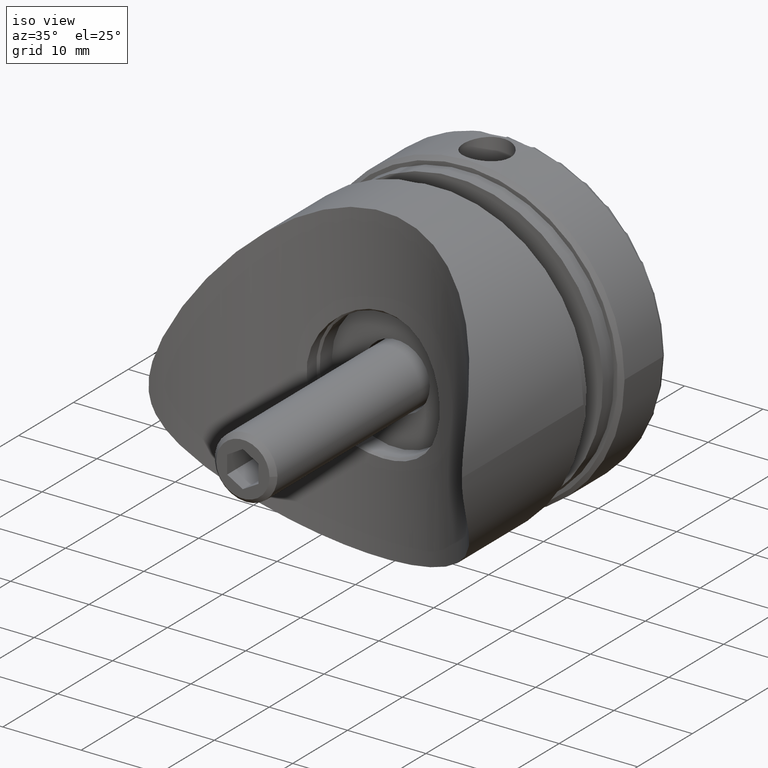
[diagram: clean part render]
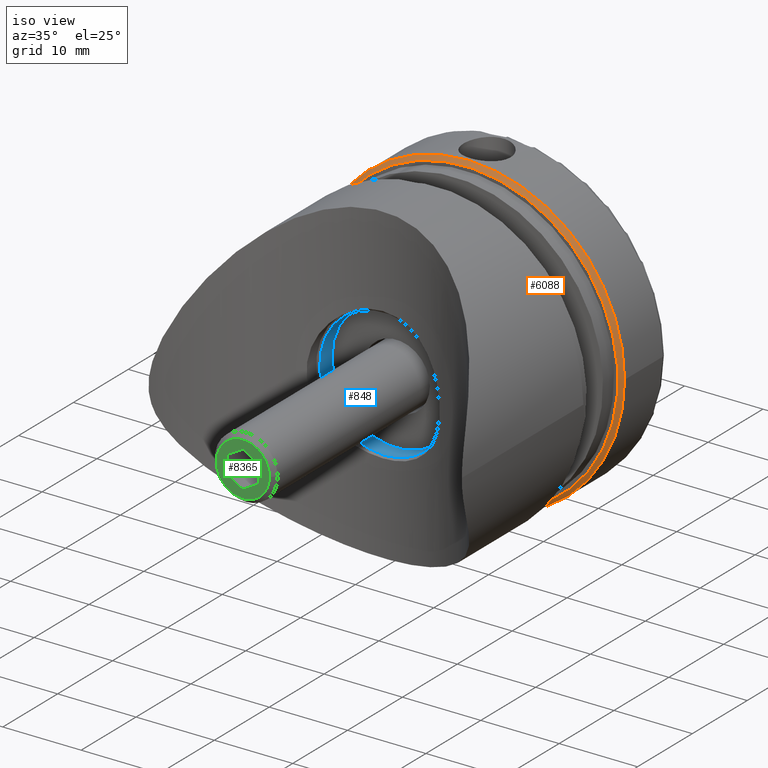
[diagram: same view with three faces highlighted in distinct colors, each labeled with its STEP entity id]
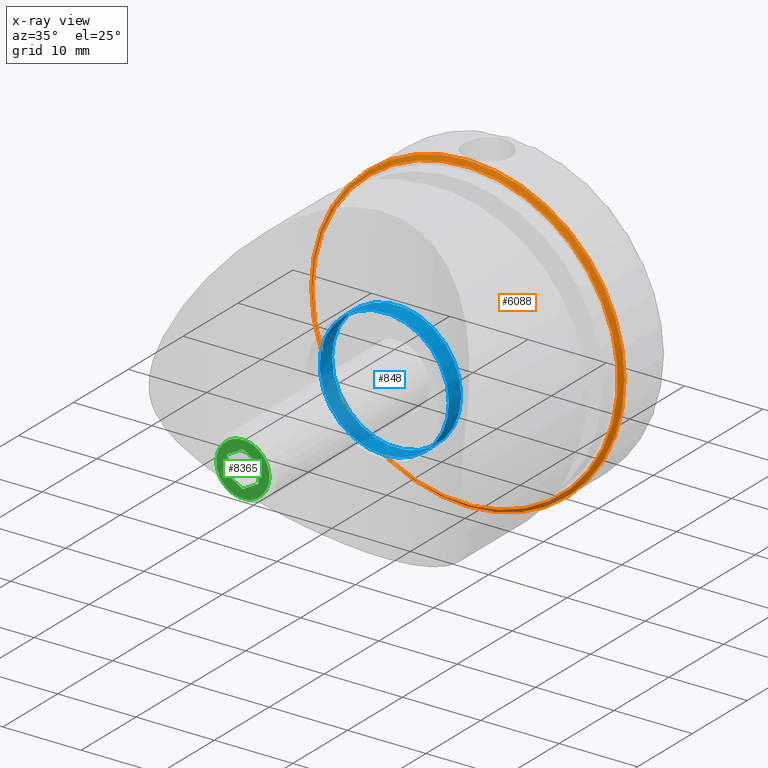
[diagram: x-ray of the same camera — body ghosted, the three highlighted faces saturated]
A machine part, iso view with three faces highlighted in distinct colors.
The next image is the same camera in x-ray (body ghosted, the three faces saturated) — at least one of them is partly hidden behind the body in this view.
Their STEP definitions:

[orange] entity #6088 — the highlighted conical surface has half-angle 45 deg.
#461 = DIRECTION ( 'NONE',  ( -1.000000000000000000, -9.486769009248167742E-16, 0.000000000000000000 ) ) ;
#2050 = VERTEX_POINT ( 'NONE', #13696 ) ;
#3410 = CARTESIAN_POINT ( 'NONE',  ( -8.953186724940663883E-30, 9.462128050782584868E-15, 0.000000000000000000 ) ) ;
#4585 = VERTEX_POINT ( 'NONE', #13529 ) ;
#5001 = EDGE_CURVE ( 'NONE', #4585, #4585, #14170, .T. ) ;
#5219 = DIRECTION ( 'NONE',  ( -9.462128050782584868E-16, 1.000000000000000000, 0.000000000000000000 ) ) ;
#5527 = AXIS2_PLACEMENT_3D ( 'NONE', #12988, #5939, #14184 ) ;
#5939 = DIRECTION ( 'NONE',  ( 9.462128050782584868E-16, -1.000000000000000000, -0.000000000000000000 ) ) ;
#6088 = ADVANCED_FACE ( 'NONE', ( #11196, #11389 ), #8096, .T. ) ;
#6242 = ORIENTED_EDGE ( 'NONE', *, *, #10031, .F. ) ;
#7002 = DIRECTION ( 'NONE',  ( -9.462128050782584868E-16, 1.000000000000000000, 0.000000000000000000 ) ) ;
#8058 = AXIS2_PLACEMENT_3D ( 'NONE', #9855, #5219, #461 ) ;
#8096 = CONICAL_SURFACE ( 'NONE', #10264, 19.50000000000000711, 0.7853981633974479459 ) ;
#8348 = ORIENTED_EDGE ( 'NONE', *, *, #5001, .F. ) ;
#9477 = EDGE_LOOP ( 'NONE', ( #6242 ) ) ;
#9855 = CARTESIAN_POINT ( 'NONE',  ( -4.731064025391258908E-16, 0.4999999999999964473, 0.000000000000000000 ) ) ;
#10031 = EDGE_CURVE ( 'NONE', #2050, #2050, #10833, .T. ) ;
#10264 = AXIS2_PLACEMENT_3D ( 'NONE', #3410, #7002, #13898 ) ;
#10833 = CIRCLE ( 'NONE', #8058, 19.99999999999999289 ) ;
#11196 = FACE_OUTER_BOUND ( 'NONE', #9477, .T. ) ;
#11389 = FACE_BOUND ( 'NONE', #13139, .T. ) ;
#12988 = CARTESIAN_POINT ( 'NONE',  ( -8.953186724940666686E-30, 9.462128050782584868E-15, 0.000000000000000000 ) ) ;
#13139 = EDGE_LOOP ( 'NONE', ( #8348 ) ) ;
#13529 = CARTESIAN_POINT ( 'NONE',  ( -19.50000000000000711, -8.989021648243461542E-15, 0.000000000000000000 ) ) ;
#13696 = CARTESIAN_POINT ( 'NONE',  ( -19.99999999999999289, 0.4999999999999774625, 0.000000000000000000 ) ) ;
#13898 = DIRECTION ( 'NONE',  ( -1.000000000000000000, -9.462128050782582896E-16, 0.000000000000000000 ) ) ;
#14170 = CIRCLE ( 'NONE', #5527, 19.50000000000000711 ) ;
#14184 = DIRECTION ( 'NONE',  ( -1.000000000000000000, -9.462128050782582896E-16, 0.000000000000000000 ) ) ;

[blue] entity #848 — the highlighted cylindrical surface (bore or boss wall) has radius 8.25 mm, axis along (-0, 1, -0).
#222 = DIRECTION ( 'NONE',  ( -1.000000000000000000, 4.336808689942018722E-16, 0.000000000000000000 ) ) ;
#710 = CARTESIAN_POINT ( 'NONE',  ( -8.249999999999998224, 0.2499999999999994726, 0.000000000000000000 ) ) ;
#848 = ADVANCED_FACE ( 'NONE', ( #4095, #13275 ), #6281, .F. ) ;
#1256 = EDGE_CURVE ( 'NONE', #6428, #6428, #11063, .T. ) ;
#1495 = CARTESIAN_POINT ( 'NONE',  ( 1.084202172485485206E-16, 0.2499999999999958922, 0.000000000000000000 ) ) ;
#2133 = CARTESIAN_POINT ( 'NONE',  ( 1.084202172485502856E-15, 2.499999999999996891, 0.000000000000000000 ) ) ;
#4095 = FACE_OUTER_BOUND ( 'NONE', #6561, .T. ) ;
#4936 = VERTEX_POINT ( 'NONE', #12409 ) ;
#5605 = DIRECTION ( 'NONE',  ( 4.336808689942017736E-16, 1.000000000000000000, -0.000000000000000000 ) ) ;
#6254 = DIRECTION ( 'NONE',  ( 4.336808689942017736E-16, 1.000000000000000000, -0.000000000000000000 ) ) ;
#6281 = CYLINDRICAL_SURFACE ( 'NONE', #6480, 8.250000000000000000 ) ;
#6428 = VERTEX_POINT ( 'NONE', #710 ) ;
#6480 = AXIS2_PLACEMENT_3D ( 'NONE', #11997, #10918, #12156 ) ;
#6561 = EDGE_LOOP ( 'NONE', ( #14103 ) ) ;
#7991 = DIRECTION ( 'NONE',  ( -1.000000000000000000, 4.205390244792259832E-16, 0.000000000000000000 ) ) ;
#8000 = EDGE_LOOP ( 'NONE', ( #14040 ) ) ;
#9344 = EDGE_CURVE ( 'NONE', #4936, #4936, #12143, .T. ) ;
#10918 = DIRECTION ( 'NONE',  ( 4.336808689942017736E-16, 1.000000000000000000, -0.000000000000000000 ) ) ;
#11063 = CIRCLE ( 'NONE', #11487, 8.249999999999998224 ) ;
#11487 = AXIS2_PLACEMENT_3D ( 'NONE', #1495, #6254, #222 ) ;
#11599 = AXIS2_PLACEMENT_3D ( 'NONE', #2133, #5605, #7991 ) ;
#11997 = CARTESIAN_POINT ( 'NONE',  ( 3.469446951953614189E-15, 8.000000000000000000, 0.000000000000000000 ) ) ;
#12143 = CIRCLE ( 'NONE', #11599, 8.250000000000000000 ) ;
#12156 = DIRECTION ( 'NONE',  ( -1.000000000000000000, 4.205390244792259832E-16, 0.000000000000000000 ) ) ;
#12409 = CARTESIAN_POINT ( 'NONE',  ( -8.249999999999998224, 2.500000000000000444, 0.000000000000000000 ) ) ;
#13275 = FACE_OUTER_BOUND ( 'NONE', #8000, .T. ) ;
#14040 = ORIENTED_EDGE ( 'NONE', *, *, #1256, .F. ) ;
#14103 = ORIENTED_EDGE ( 'NONE', *, *, #9344, .T. ) ;

[green] entity #8365 — the highlighted planar face has unit normal (-0, -1, 0).
#31 = CARTESIAN_POINT ( 'NONE',  ( 45.00000000000000000, -2.309401076758503368, 8.522747686151501168E-16 ) ) ;
#924 = DIRECTION ( 'NONE',  ( 0.000000000000000000, 0.000000000000000000, -1.000000000000000000 ) ) ;
#943 = VERTEX_POINT ( 'NONE', #8971 ) ;
#1278 = VECTOR ( 'NONE', #9560, 1000.000000000000114 ) ;
#1442 = VECTOR ( 'NONE', #11939, 999.9999999999998863 ) ;
#1721 = CARTESIAN_POINT ( 'NONE',  ( 45.00000000000000000, 0.000000000000000000, -3.399999999999996358 ) ) ;
#2442 = DIRECTION ( 'NONE',  ( 0.000000000000000000, 1.000000000000000000, -1.877893248421447556E-16 ) ) ;
#2686 = DIRECTION ( 'NONE',  ( 0.000000000000000000, 0.000000000000000000, -1.000000000000000000 ) ) ;
#2879 = DIRECTION ( 'NONE',  ( 0.000000000000000000, -0.4999999999999999445, 0.8660254037844387076 ) ) ;
#2963 = ORIENTED_EDGE ( 'NONE', *, *, #5874, .F. ) ;
#3081 = VERTEX_POINT ( 'NONE', #12071 ) ;
#3616 = CARTESIAN_POINT ( 'NONE',  ( 45.00000000000000000, -1.154700538379252350, -1.999999999999999556 ) ) ;
#3858 = CARTESIAN_POINT ( 'NONE',  ( 45.00000000000000000, 2.309401076758503812, -6.008135144191819822E-16 ) ) ;
#4146 = VERTEX_POINT ( 'NONE', #8451 ) ;
#4430 = EDGE_CURVE ( 'NONE', #4146, #14281, #9554, .T. ) ;
#4647 = EDGE_CURVE ( 'NONE', #9859, #3081, #11385, .T. ) ;
#5246 = ORIENTED_EDGE ( 'NONE', *, *, #13476, .T. ) ;
#5313 = VECTOR ( 'NONE', #6739, 1000.000000000000000 ) ;
#5675 = ORIENTED_EDGE ( 'NONE', *, *, #8334, .F. ) ;
#5715 = EDGE_LOOP ( 'NONE', ( #9011, #2963, #12030, #13441, #5675, #8113 ) ) ;
#5874 = EDGE_CURVE ( 'NONE', #3081, #4146, #15077, .T. ) ;
#6092 = VECTOR ( 'NONE', #2442, 1000.000000000000000 ) ;
#6739 = DIRECTION ( 'NONE',  ( 0.000000000000000000, -1.000000000000000000, 0.000000000000000000 ) ) ;
#6790 = VECTOR ( 'NONE', #11823, 1000.000000000000114 ) ;
#6949 = CARTESIAN_POINT ( 'NONE',  ( 45.00000000000000000, -1.154700538379252350, 2.000000000000000000 ) ) ;
#6968 = CIRCLE ( 'NONE', #13157, 3.399999999999996358 ) ;
#7255 = AXIS2_PLACEMENT_3D ( 'NONE', #13302, #8647, #2686 ) ;
#7698 = LINE ( 'NONE', #14224, #1442 ) ;
#8113 = ORIENTED_EDGE ( 'NONE', *, *, #13675, .F. ) ;
#8279 = VERTEX_POINT ( 'NONE', #1721 ) ;
#8334 = EDGE_CURVE ( 'NONE', #943, #9306, #9250, .T. ) ;
#8365 = ADVANCED_FACE ( 'NONE', ( #14026, #8864 ), #12126, .T. ) ;
#8451 = CARTESIAN_POINT ( 'NONE',  ( 45.00000000000000000, -1.154700538379252350, 2.000000000000000000 ) ) ;
#8647 = DIRECTION ( 'NONE',  ( 1.000000000000000000, 0.000000000000000000, 0.000000000000000000 ) ) ;
#8864 = FACE_OUTER_BOUND ( 'NONE', #13493, .T. ) ;
#8971 = CARTESIAN_POINT ( 'NONE',  ( 45.00000000000000000, -1.154700538379252350, -1.999999999999999556 ) ) ;
#9011 = ORIENTED_EDGE ( 'NONE', *, *, #4430, .F. ) ;
#9250 = LINE ( 'NONE', #3616, #6092 ) ;
#9306 = VERTEX_POINT ( 'NONE', #10347 ) ;
#9416 = VECTOR ( 'NONE', #2879, 1000.000000000000000 ) ;
#9554 = LINE ( 'NONE', #6949, #1278 ) ;
#9560 = DIRECTION ( 'NONE',  ( 0.000000000000000000, -0.4999999999999999445, -0.8660254037844385966 ) ) ;
#9859 = VERTEX_POINT ( 'NONE', #12110 ) ;
#9901 = LINE ( 'NONE', #31, #6790 ) ;
#10347 = CARTESIAN_POINT ( 'NONE',  ( 45.00000000000000000, 1.154700538379252350, -2.000000000000000000 ) ) ;
#10353 = DIRECTION ( 'NONE',  ( 1.000000000000000000, 0.000000000000000000, 0.000000000000000000 ) ) ;
#10787 = CARTESIAN_POINT ( 'NONE',  ( 45.00000000000000000, -2.309401076758503812, 8.673617379884035472E-16 ) ) ;
#11385 = LINE ( 'NONE', #3858, #9416 ) ;
#11823 = DIRECTION ( 'NONE',  ( 0.000000000000000000, 0.4999999999999996114, -0.8660254037844388186 ) ) ;
#11939 = DIRECTION ( 'NONE',  ( 0.000000000000000000, 0.4999999999999999445, 0.8660254037844387076 ) ) ;
#12030 = ORIENTED_EDGE ( 'NONE', *, *, #4647, .F. ) ;
#12071 = CARTESIAN_POINT ( 'NONE',  ( 45.00000000000000000, 1.154700538379252128, 2.000000000000000000 ) ) ;
#12110 = CARTESIAN_POINT ( 'NONE',  ( 45.00000000000000000, 2.309401076758503812, -6.008135144191819822E-16 ) ) ;
#12126 = PLANE ( 'NONE',  #7255 ) ;
#12556 = CARTESIAN_POINT ( 'NONE',  ( 45.00000000000000000, 1.154700538379252128, 2.000000000000000000 ) ) ;
#13147 = EDGE_CURVE ( 'NONE', #9306, #9859, #7698, .T. ) ;
#13157 = AXIS2_PLACEMENT_3D ( 'NONE', #15082, #10353, #924 ) ;
#13302 = CARTESIAN_POINT ( 'NONE',  ( 45.00000000000000000, 0.000000000000000000, 0.000000000000000000 ) ) ;
#13441 = ORIENTED_EDGE ( 'NONE', *, *, #13147, .F. ) ;
#13476 = EDGE_CURVE ( 'NONE', #8279, #8279, #6968, .T. ) ;
#13493 = EDGE_LOOP ( 'NONE', ( #5246 ) ) ;
#13675 = EDGE_CURVE ( 'NONE', #14281, #943, #9901, .T. ) ;
#14026 = FACE_BOUND ( 'NONE', #5715, .T. ) ;
#14224 = CARTESIAN_POINT ( 'NONE',  ( 45.00000000000000000, 1.154700538379252350, -2.000000000000000000 ) ) ;
#14281 = VERTEX_POINT ( 'NONE', #10787 ) ;
#15077 = LINE ( 'NONE', #12556, #5313 ) ;
#15082 = CARTESIAN_POINT ( 'NONE',  ( 45.00000000000000000, 0.000000000000000000, 0.000000000000000000 ) ) ;